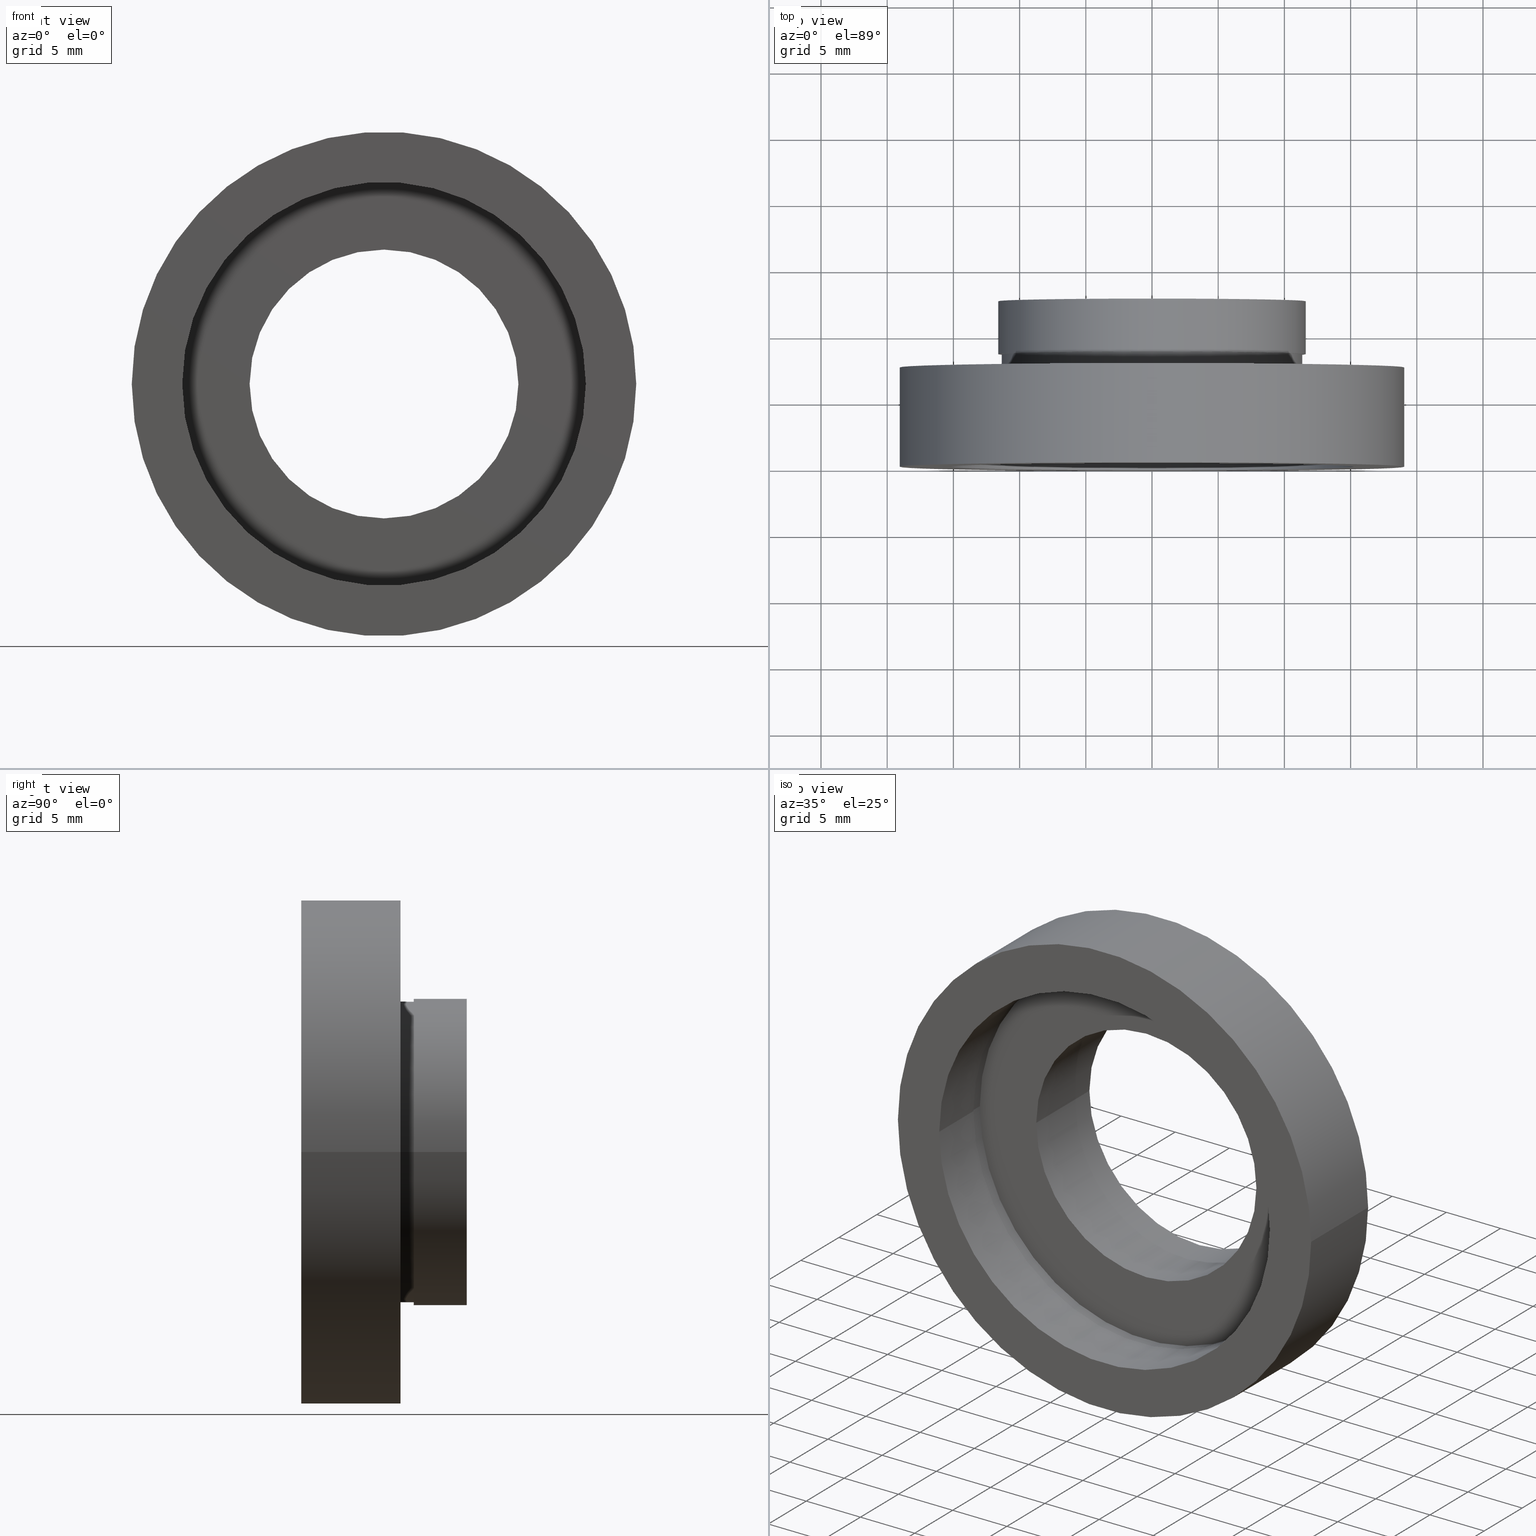
[diagram: canonical four-view strip — front | top / right | iso, engineering-drawing reading convention]
A machine part, canonical four-view strip (front | top / right | iso — engineering-drawing reading convention). The complete STEP part file that produces these views, byte-faithful:
ISO-10303-21;
HEADER;
FILE_DESCRIPTION (( 'STEP AP214' ),
    '1' );
FILE_NAME ('504111.STEP',
    '2019-10-08T06:22:47',
    ( '' ),
    ( '' ),
    'SwSTEP 2.0',
    'SolidWorks 2016',
    '' );
FILE_SCHEMA (( 'AUTOMOTIVE_DESIGN' ));
ENDSEC;

DATA;
#1 =( LENGTH_UNIT ( ) NAMED_UNIT ( * ) SI_UNIT ( .MILLI., .METRE. ) );
#2 =( GEOMETRIC_REPRESENTATION_CONTEXT ( 3 ) GLOBAL_UNCERTAINTY_ASSIGNED_CONTEXT ( ( #228 ) ) GLOBAL_UNIT_ASSIGNED_CONTEXT ( ( #546, #492, #10 ) ) REPRESENTATION_CONTEXT ( 'NONE', 'WORKASPACE' ) );
#3 = CARTESIAN_POINT ( 'NONE',  ( 10.15000000000000000, 12.49999999999999800, 1.243016501134563700E-015 ) ) ;
#4 = ORIENTED_EDGE ( 'NONE', *, *, #320, .T. ) ;
#5 = SURFACE_STYLE_USAGE ( .BOTH. , #469 ) ;
#6 = CIRCLE ( 'NONE', #435, 15.34999999999999800 ) ;
#7 = EDGE_LOOP ( 'NONE', ( #168, #304, #172, #42 ) ) ;
#8 = LINE ( 'NONE', #222, #330 ) ;
#9 = CARTESIAN_POINT ( 'NONE',  ( 1.026991039163387700E-015, 8.499999999999998200, 0.0000000000000000000 ) ) ;
#10 =( NAMED_UNIT ( * ) SI_UNIT ( $, .STERADIAN. ) SOLID_ANGLE_UNIT ( ) );
#11 = ORIENTED_EDGE ( 'NONE', *, *, #589, .F. ) ;
#12 = FACE_BOUND ( 'NONE', #287, .T. ) ;
#13 = CARTESIAN_POINT ( 'NONE',  ( 11.35000000000000100, 7.499999999999998200, 0.0000000000000000000 ) ) ;
#14 = VERTEX_POINT ( 'NONE', #74 ) ;
#15 = CARTESIAN_POINT ( 'NONE',  ( 1.516849758822328300E-015, 4.499999999999997300, 0.0000000000000000000 ) ) ;
#16 = ADVANCED_FACE ( 'NONE', ( #379 ), #299, .F. ) ;
#17 = CYLINDRICAL_SURFACE ( 'NONE', #34, 11.60999999999999900 ) ;
#18 = ORIENTED_EDGE ( 'NONE', *, *, #98, .F. ) ;
#19 = DIRECTION ( 'NONE',  ( -1.000000000000000000, -1.224646799147351200E-016, 0.0000000000000000000 ) ) ;
#20 = CYLINDRICAL_SURFACE ( 'NONE', #192, 19.05000000000000400 ) ;
#21 = CARTESIAN_POINT ( 'NONE',  ( -10.15000000000000000, 12.49999999999999500, 0.0000000000000000000 ) ) ;
#22 = AXIS2_PLACEMENT_3D ( 'NONE', #520, #36, #370 ) ;
#23 = DIRECTION ( 'NONE',  ( -1.000000000000000000, -1.224646799147351000E-016, 0.0000000000000000000 ) ) ;
#24 = EDGE_CURVE ( 'NONE', #32, #182, #565, .T. ) ;
#25 = DIRECTION ( 'NONE',  ( 1.000000000000000000, 1.224646799147351000E-016, 0.0000000000000000000 ) ) ;
#26 = EDGE_LOOP ( 'NONE', ( #602, #18 ) ) ;
#27 = ORIENTED_EDGE ( 'NONE', *, *, #191, .F. ) ;
#28 = ADVANCED_FACE ( 'NONE', ( #436 ), #220, .F. ) ;
#29 = PRODUCT ( '504111', '504111', '', ( #438 ) ) ;
#30 = CARTESIAN_POINT ( 'NONE',  ( 0.0000000000000000000, 16.88601823708207700, 0.0000000000000000000 ) ) ;
#31 = EDGE_CURVE ( 'NONE', #404, #14, #272, .T. ) ;
#32 = VERTEX_POINT ( 'NONE', #127 ) ;
#33 = CARTESIAN_POINT ( 'NONE',  ( 5.371323195044473300E-016, 12.49999999999999600, 0.0000000000000000000 ) ) ;
#34 = AXIS2_PLACEMENT_3D ( 'NONE', #193, #571, #339 ) ;
#35 = CIRCLE ( 'NONE', #352, 19.05000000000000400 ) ;
#36 = DIRECTION ( 'NONE',  ( -1.224646799147351000E-016, 1.000000000000000000, -0.0000000000000000000 ) ) ;
#37 = EDGE_CURVE ( 'NONE', #258, #238, #510, .T. ) ;
#38 = CARTESIAN_POINT ( 'NONE',  ( 11.35000000000000000, 16.88601823708207700, 1.389974117032245900E-015 ) ) ;
#39 = VECTOR ( 'NONE', #224, 1000.000000000000000 ) ;
#40 = EDGE_LOOP ( 'NONE', ( #214, #539, #375, #63 ) ) ;
#41 = AXIS2_PLACEMENT_3D ( 'NONE', #376, #302, #397 ) ;
#42 = ORIENTED_EDGE ( 'NONE', *, *, #581, .F. ) ;
#43 = CARTESIAN_POINT ( 'NONE',  ( 10.15000000000000000, 5.499999999999997300, 1.243016501134563700E-015 ) ) ;
#44 = PLANE ( 'NONE',  #491 ) ;
#45 = SURFACE_STYLE_USAGE ( .BOTH. , #432 ) ;
#46 = EDGE_LOOP ( 'NONE', ( #283, #473, #101, #344 ) ) ;
#47 = LINE ( 'NONE', #600, #146 ) ;
#48 = CARTESIAN_POINT ( 'NONE',  ( 0.0000000000000000000, 16.88601823708207700, 0.0000000000000000000 ) ) ;
#49 = EDGE_CURVE ( 'NONE', #238, #454, #169, .T. ) ;
#50 = DIRECTION ( 'NONE',  ( -1.000000000000000000, -1.494163200669084900E-016, 0.0000000000000000000 ) ) ;
#51 = AXIS2_PLACEMENT_3D ( 'NONE', #338, #334, #329 ) ;
#52 = VERTEX_POINT ( 'NONE', #178 ) ;
#53 = DIRECTION ( 'NONE',  ( -1.224646799147351000E-016, 1.000000000000000000, -0.0000000000000000000 ) ) ;
#54 = PRESENTATION_STYLE_ASSIGNMENT (( #414 ) ) ;
#55 = ORIENTED_EDGE ( 'NONE', *, *, #216, .T. ) ;
#56 = PLANE ( 'NONE',  #75 ) ;
#57 = CARTESIAN_POINT ( 'NONE',  ( 15.35000000000000000, 5.499999999999998200, 1.879832836691187100E-015 ) ) ;
#58 = PRODUCT_DEFINITION_SHAPE ( 'NONE', 'NONE',  #72 ) ;
#59 = EDGE_LOOP ( 'NONE', ( #151, #177, #301, #229 ) ) ;
#60 = FACE_OUTER_BOUND ( 'NONE', #46, .T. ) ;
#61 = DIRECTION ( 'NONE',  ( -1.224646799147351000E-016, 1.000000000000000000, 0.0000000000000000000 ) ) ;
#62 = EDGE_CURVE ( 'NONE', #427, #143, #544, .T. ) ;
#63 = ORIENTED_EDGE ( 'NONE', *, *, #320, .F. ) ;
#64 = AXIS2_PLACEMENT_3D ( 'NONE', #541, #576, #200 ) ;
#65 = DIRECTION ( 'NONE',  ( -1.000000000000000000, -1.224646799147350700E-016, 0.0000000000000000000 ) ) ;
#66 =( NAMED_UNIT ( * ) PLANE_ANGLE_UNIT ( ) SI_UNIT ( $, .RADIAN. ) );
#67 = ADVANCED_FACE ( 'NONE', ( #311 ), #266, .T. ) ;
#68 = ORIENTED_EDGE ( 'NONE', *, *, #356, .F. ) ;
#69 = ADVANCED_BREP_SHAPE_REPRESENTATION ( '504111', ( #250, #41 ), #201 ) ;
#70 = VERTEX_POINT ( 'NONE', #326 ) ;
#71 = DIRECTION ( 'NONE',  ( 1.224646799147351000E-016, -1.000000000000000000, 0.0000000000000000000 ) ) ;
#72 = PRODUCT_DEFINITION ( 'δ֪', '', #271, #163 ) ;
#73 = FACE_OUTER_BOUND ( 'NONE', #7, .T. ) ;
#74 = CARTESIAN_POINT ( 'NONE',  ( -11.60999999999999900, 12.49999999999999300, 0.0000000000000000000 ) ) ;
#75 = AXIS2_PLACEMENT_3D ( 'NONE', #13, #440, #395 ) ;
#76 = ORIENTED_EDGE ( 'NONE', *, *, #183, .T. ) ;
#77 = CIRCLE ( 'NONE', #590, 15.24000000000000000 ) ;
#78 =( NAMED_UNIT ( * ) SI_UNIT ( $, .STERADIAN. ) SOLID_ANGLE_UNIT ( ) );
#79 = COLOUR_RGB ( '',1.000000000000000000, 1.000000000000000000, 1.000000000000000000 ) ;
#80 = FILL_AREA_STYLE_COLOUR ( '', #133 ) ;
#81 = CARTESIAN_POINT ( 'NONE',  ( -11.35000000000000000, 16.88601823708207700, 0.0000000000000000000 ) ) ;
#82 = EDGE_CURVE ( 'NONE', #52, #444, #523, .T. ) ;
#83 = ORIENTED_EDGE ( 'NONE', *, *, #87, .T. ) ;
#84 = DIRECTION ( 'NONE',  ( -1.224646799147351000E-016, 1.000000000000000000, -0.0000000000000000000 ) ) ;
#85 = PRESENTATION_LAYER_ASSIGNMENT (  '', '', ( #449 ) ) ;
#86 = EDGE_LOOP ( 'NONE', ( #11, #125 ) ) ;
#87 = EDGE_CURVE ( 'NONE', #340, #70, #8, .T. ) ;
#88 = CARTESIAN_POINT ( 'NONE',  ( 11.60999999999999900, 8.500000000000000000, 0.0000000000000000000 ) ) ;
#89 = LINE ( 'NONE', #474, #456 ) ;
#90 = CARTESIAN_POINT ( 'NONE',  ( 19.05000000000000400, 7.499999999999999100, 2.332952152375708400E-015 ) ) ;
#91 = FILL_AREA_STYLE ('',( #616 ) ) ;
#92 = SURFACE_STYLE_FILL_AREA ( #363 ) ;
#93 = PRESENTATION_LAYER_ASSIGNMENT (  '', '', ( #276 ) ) ;
#94 = DIRECTION ( 'NONE',  ( -1.224646799147351000E-016, 1.000000000000000000, -0.0000000000000000000 ) ) ;
#95 = STYLED_ITEM ( 'NONE', ( #105 ), #250 ) ;
#96 = CARTESIAN_POINT ( 'NONE',  ( 1.026991039163387700E-015, 8.499999999999998200, 0.0000000000000000000 ) ) ;
#97 = VERTEX_POINT ( 'NONE', #604 ) ;
#98 = EDGE_CURVE ( 'NONE', #32, #441, #373, .T. ) ;
#99 = FACE_OUTER_BOUND ( 'NONE', #59, .T. ) ;
#100 = CARTESIAN_POINT ( 'NONE',  ( 0.0000000000000000000, 16.88601823708207700, 0.0000000000000000000 ) ) ;
#101 = ORIENTED_EDGE ( 'NONE', *, *, #126, .T. ) ;
#102 =( NAMED_UNIT ( * ) SI_UNIT ( $, .STERADIAN. ) SOLID_ANGLE_UNIT ( ) );
#103 = FACE_OUTER_BOUND ( 'NONE', #221, .T. ) ;
#104 = APPLICATION_CONTEXT ( 'automotive_design' ) ;
#105 = PRESENTATION_STYLE_ASSIGNMENT (( #45 ) ) ;
#106 = DIRECTION ( 'NONE',  ( -1.224646799147351000E-016, 1.000000000000000000, -0.0000000000000000000 ) ) ;
#107 = CIRCLE ( 'NONE', #108, 10.14999999999999900 ) ;
#108 = AXIS2_PLACEMENT_3D ( 'NONE', #153, #148, #393 ) ;
#109 = ORIENTED_EDGE ( 'NONE', *, *, #420, .T. ) ;
#110 = CARTESIAN_POINT ( 'NONE',  ( -19.04999999999999700, -5.802399104329318300E-015, 0.0000000000000000000 ) ) ;
#111 = ORIENTED_EDGE ( 'NONE', *, *, #82, .F. ) ;
#112 = FACE_BOUND ( 'NONE', #483, .T. ) ;
#113 = EDGE_CURVE ( 'NONE', #252, #598, #359, .T. ) ;
#114 = MECHANICAL_DESIGN_GEOMETRIC_PRESENTATION_REPRESENTATION (  '', ( #449 ), #482 ) ;
#115 = CARTESIAN_POINT ( 'NONE',  ( -11.34999999999999800, 8.499999999999996400, 0.0000000000000000000 ) ) ;
#116 = VECTOR ( 'NONE', #412, 1000.000000000000000 ) ;
#117 = EDGE_LOOP ( 'NONE', ( #68, #578, #314, #618 ) ) ;
#118 = LINE ( 'NONE', #381, #620 ) ;
#119 = ORIENTED_EDGE ( 'NONE', *, *, #37, .F. ) ;
#120 = EDGE_CURVE ( 'NONE', #595, #454, #615, .T. ) ;
#121 = AXIS2_PLACEMENT_3D ( 'NONE', #9, #345, #50 ) ;
#122 = CARTESIAN_POINT ( 'NONE',  ( 0.0000000000000000000, 16.88601823708207700, 0.0000000000000000000 ) ) ;
#123 = MECHANICAL_DESIGN_GEOMETRIC_PRESENTATION_REPRESENTATION (  '', ( #95 ), #161 ) ;
#124 = CIRCLE ( 'NONE', #130, 11.60999999999999900 ) ;
#125 = ORIENTED_EDGE ( 'NONE', *, *, #295, .F. ) ;
#126 = EDGE_CURVE ( 'NONE', #242, #427, #585, .T. ) ;
#127 = CARTESIAN_POINT ( 'NONE',  ( 19.05000000000000400, -1.136494799577910300E-015, 2.332952152375708400E-015 ) ) ;
#128 = VECTOR ( 'NONE', #175, 1000.000000000000000 ) ;
#129 = DIRECTION ( 'NONE',  ( -1.224646799147351000E-016, 1.000000000000000000, -0.0000000000000000000 ) ) ;
#130 = AXIS2_PLACEMENT_3D ( 'NONE', #239, #535, #476 ) ;
#131 = EDGE_LOOP ( 'NONE', ( #76, #83, #490, #316 ) ) ;
#132 = FILL_AREA_STYLE_COLOUR ( '', #383 ) ;
#133 = COLOUR_RGB ( '',1.000000000000000000, 1.000000000000000000, 1.000000000000000000 ) ;
#134 = DIRECTION ( 'NONE',  ( 1.000000000000000000, 1.224646799147351000E-016, 0.0000000000000000000 ) ) ;
#135 = EDGE_LOOP ( 'NONE', ( #119, #498, #549, #526 ) ) ;
#136 = DIRECTION ( 'NONE',  ( -1.224646799147351000E-016, 1.000000000000000000, -0.0000000000000000000 ) ) ;
#137 =( GEOMETRIC_REPRESENTATION_CONTEXT ( 3 ) GLOBAL_UNCERTAINTY_ASSIGNED_CONTEXT ( ( #499 ) ) GLOBAL_UNIT_ASSIGNED_CONTEXT ( ( #348, #66, #310 ) ) REPRESENTATION_CONTEXT ( 'NONE', 'WORKASPACE' ) );
#138 = FILL_AREA_STYLE_COLOUR ( '', #141 ) ;
#139 = FACE_OUTER_BOUND ( 'NONE', #117, .T. ) ;
#140 = CARTESIAN_POINT ( 'NONE',  ( -15.34999999999999600, 4.499999999999995600, 0.0000000000000000000 ) ) ;
#141 = COLOUR_RGB ( '',1.000000000000000000, 1.000000000000000000, 1.000000000000000000 ) ;
#142 = MECHANICAL_DESIGN_GEOMETRIC_PRESENTATION_REPRESENTATION (  '', ( #583 ), #416 ) ;
#143 = VERTEX_POINT ( 'NONE', #3 ) ;
#144 = DIRECTION ( 'NONE',  ( -1.000000000000000000, -1.365923996832131400E-016, 0.0000000000000000000 ) ) ;
#145 = DIRECTION ( 'NONE',  ( -1.224646799147351000E-016, 1.000000000000000000, -0.0000000000000000000 ) ) ;
#146 = VECTOR ( 'NONE', #270, 1000.000000000000000 ) ;
#147 = FILL_AREA_STYLE ('',( #472 ) ) ;
#148 = DIRECTION ( 'NONE',  ( -1.224646799147351000E-016, 1.000000000000000000, -0.0000000000000000000 ) ) ;
#149 = STYLED_ITEM ( 'NONE', ( #460 ), #16 ) ;
#150 =( LENGTH_UNIT ( ) NAMED_UNIT ( * ) SI_UNIT ( .MILLI., .METRE. ) );
#151 = ORIENTED_EDGE ( 'NONE', *, *, #589, .T. ) ;
#152 = ORIENTED_EDGE ( 'NONE', *, *, #452, .T. ) ;
#153 = CARTESIAN_POINT ( 'NONE',  ( 1.394385078907593200E-015, 5.499999999999996400, 0.0000000000000000000 ) ) ;
#154 = SURFACE_STYLE_FILL_AREA ( #389 ) ;
#155 = EDGE_LOOP ( 'NONE', ( #369, #391, #367, #199 ) ) ;
#156 = DIRECTION ( 'NONE',  ( -1.000000000000000000, 0.0000000000000000000, 0.0000000000000000000 ) ) ;
#157 = EDGE_CURVE ( 'NONE', #97, #556, #505, .T. ) ;
#158 = ADVANCED_FACE ( 'NONE', ( #249 ), #218, .T. ) ;
#159 = CIRCLE ( 'NONE', #121, 11.60999999999999800 ) ;
#160 = STYLED_ITEM ( 'NONE', ( #176 ), #360 ) ;
#161 =( GEOMETRIC_REPRESENTATION_CONTEXT ( 3 ) GLOBAL_UNCERTAINTY_ASSIGNED_CONTEXT ( ( #164 ) ) GLOBAL_UNIT_ASSIGNED_CONTEXT ( ( #568, #382, #234 ) ) REPRESENTATION_CONTEXT ( 'NONE', 'WORKASPACE' ) );
#162 = CARTESIAN_POINT ( 'NONE',  ( 1.516849758822328300E-015, 4.499999999999997300, 0.0000000000000000000 ) ) ;
#163 = PRODUCT_DEFINITION_CONTEXT ( 'detailed design', #104, 'design' ) ;
#164 = UNCERTAINTY_MEASURE_WITH_UNIT (LENGTH_MEASURE( 1.000000000000000100E-005 ), #568, 'distance_accuracy_value', 'NONE');
#165 = ADVANCED_FACE ( 'NONE', ( #103 ), #293, .T. ) ;
#166 = COLOUR_RGB ( '',1.000000000000000000, 1.000000000000000000, 1.000000000000000000 ) ;
#167 = SURFACE_STYLE_USAGE ( .BOTH. , #297 ) ;
#168 = ORIENTED_EDGE ( 'NONE', *, *, #87, .F. ) ;
#169 = CIRCLE ( 'NONE', #22, 11.35000000000000000 ) ;
#170 = CARTESIAN_POINT ( 'NONE',  ( 2.067940818438636500E-015, -3.469446951953614200E-015, 0.0000000000000000000 ) ) ;
#171 = FILL_AREA_STYLE_COLOUR ( '', #79 ) ;
#172 = ORIENTED_EDGE ( 'NONE', *, *, #31, .T. ) ;
#173 =( LENGTH_UNIT ( ) NAMED_UNIT ( * ) SI_UNIT ( .MILLI., .METRE. ) );
#174 = ORIENTED_EDGE ( 'NONE', *, *, #478, .T. ) ;
#175 = DIRECTION ( 'NONE',  ( -1.224646799147351000E-016, 1.000000000000000000, -0.0000000000000000000 ) ) ;
#176 = PRESENTATION_STYLE_ASSIGNMENT (( #167 ) ) ;
#177 = ORIENTED_EDGE ( 'NONE', *, *, #37, .T. ) ;
#178 = CARTESIAN_POINT ( 'NONE',  ( 15.35000000000000000, 4.499999999999999100, 1.879832836691187100E-015 ) ) ;
#179 = PRESENTATION_LAYER_ASSIGNMENT (  '', '', ( #149 ) ) ;
#180 = ORIENTED_EDGE ( 'NONE', *, *, #351, .T. ) ;
#181 = SURFACE_STYLE_FILL_AREA ( #226 ) ;
#182 = VERTEX_POINT ( 'NONE', #90 ) ;
#183 = EDGE_CURVE ( 'NONE', #404, #340, #231, .T. ) ;
#184 = DIRECTION ( 'NONE',  ( -1.000000000000000000, -1.130113013665672600E-016, 0.0000000000000000000 ) ) ;
#185 = DIRECTION ( 'NONE',  ( -1.224646799147351000E-016, 1.000000000000000000, -0.0000000000000000000 ) ) ;
#186 = SHAPE_DEFINITION_REPRESENTATION ( #58, #69 ) ;
#187 = CIRCLE ( 'NONE', #259, 11.35000000000000000 ) ;
#188 = PLANE ( 'NONE',  #280 ) ;
#189 = ORIENTED_EDGE ( 'NONE', *, *, #290, .F. ) ;
#190 = CARTESIAN_POINT ( 'NONE',  ( 15.24000000000000400, -1.603085230053050900E-015, 1.866361721900566200E-015 ) ) ;
#191 = EDGE_CURVE ( 'NONE', #444, #598, #599, .T. ) ;
#192 = AXIS2_PLACEMENT_3D ( 'NONE', #251, #586, #434 ) ;
#193 = CARTESIAN_POINT ( 'NONE',  ( 0.0000000000000000000, 16.88601823708207700, 0.0000000000000000000 ) ) ;
#194 =( NAMED_UNIT ( * ) PLANE_ANGLE_UNIT ( ) SI_UNIT ( $, .RADIAN. ) );
#195 = ORIENTED_EDGE ( 'NONE', *, *, #486, .T. ) ;
#196 = SURFACE_STYLE_USAGE ( .BOTH. , #489 ) ;
#197 = VECTOR ( 'NONE', #603, 1000.000000000000000 ) ;
#198 = SURFACE_STYLE_FILL_AREA ( #91 ) ;
#199 = ORIENTED_EDGE ( 'NONE', *, *, #113, .F. ) ;
#200 = DIRECTION ( 'NONE',  ( -1.000000000000000000, -1.709087168450056200E-016, 0.0000000000000000000 ) ) ;
#201 =( GEOMETRIC_REPRESENTATION_CONTEXT ( 3 ) GLOBAL_UNCERTAINTY_ASSIGNED_CONTEXT ( ( #296 ) ) GLOBAL_UNIT_ASSIGNED_CONTEXT ( ( #570, #384, #232 ) ) REPRESENTATION_CONTEXT ( 'NONE', 'WORKASPACE' ) );
#202 = SURFACE_STYLE_FILL_AREA ( #286 ) ;
#203 = FILL_AREA_STYLE ('',( #443 ) ) ;
#204 = APPLICATION_PROTOCOL_DEFINITION ( 'draft international standard', 'automotive_design', 1998, #104 ) ;
#205 = DIRECTION ( 'NONE',  ( -1.224646799147351000E-016, 1.000000000000000000, -0.0000000000000000000 ) ) ;
#206 = ORIENTED_EDGE ( 'NONE', *, *, #323, .F. ) ;
#207 = AXIS2_PLACEMENT_3D ( 'NONE', #162, #309, #211 ) ;
#208 = CIRCLE ( 'NONE', #207, 15.23999999999999700 ) ;
#209 = ORIENTED_EDGE ( 'NONE', *, *, #519, .F. ) ;
#210 = CARTESIAN_POINT ( 'NONE',  ( 0.0000000000000000000, 16.88601823708207700, 0.0000000000000000000 ) ) ;
#211 = DIRECTION ( 'NONE',  ( -1.000000000000000000, -1.138269997360109900E-016, 0.0000000000000000000 ) ) ;
#212 = DIRECTION ( 'NONE',  ( -1.000000000000000000, -2.260226027331345300E-016, 0.0000000000000000000 ) ) ;
#213 = STYLED_ITEM ( 'NONE', ( #54 ), #67 ) ;
#214 = ORIENTED_EDGE ( 'NONE', *, *, #24, .F. ) ;
#215 = DIRECTION ( 'NONE',  ( -1.224646799147351000E-016, 1.000000000000000000, -0.0000000000000000000 ) ) ;
#216 = EDGE_CURVE ( 'NONE', #467, #97, #89, .T. ) ;
#217 = DIRECTION ( 'NONE',  ( -1.224646799147351000E-016, 1.000000000000000000, -0.0000000000000000000 ) ) ;
#218 = CYLINDRICAL_SURFACE ( 'NONE', #353, 11.35000000000000000 ) ;
#219 = ADVANCED_FACE ( 'NONE', ( #73 ), #17, .T. ) ;
#220 = CYLINDRICAL_SURFACE ( 'NONE', #557, 15.34999999999999800 ) ;
#221 = EDGE_LOOP ( 'NONE', ( #307, #545, #298, #409 ) ) ;
#222 = CARTESIAN_POINT ( 'NONE',  ( 11.60999999999999900, 16.88601823708207700, 1.421814933810076900E-015 ) ) ;
#223 = AXIS2_PLACEMENT_3D ( 'NONE', #284, #136, #300 ) ;
#224 = DIRECTION ( 'NONE',  ( -1.224646799147351000E-016, 1.000000000000000000, -0.0000000000000000000 ) ) ;
#225 = AXIS2_PLACEMENT_3D ( 'NONE', #380, #573, #184 ) ;
#226 = FILL_AREA_STYLE ('',( #80 ) ) ;
#227 = FACE_BOUND ( 'NONE', #451, .T. ) ;
#228 = UNCERTAINTY_MEASURE_WITH_UNIT (LENGTH_MEASURE( 1.000000000000000100E-005 ), #546, 'distance_accuracy_value', 'NONE');
#229 = ORIENTED_EDGE ( 'NONE', *, *, #120, .F. ) ;
#230 =( LENGTH_UNIT ( ) NAMED_UNIT ( * ) SI_UNIT ( .MILLI., .METRE. ) );
#231 = CIRCLE ( 'NONE', #418, 11.60999999999999800 ) ;
#232 =( NAMED_UNIT ( * ) SI_UNIT ( $, .STERADIAN. ) SOLID_ANGLE_UNIT ( ) );
#233 = STYLED_ITEM ( 'NONE', ( #364 ), #69 ) ;
#234 =( NAMED_UNIT ( * ) SI_UNIT ( $, .STERADIAN. ) SOLID_ANGLE_UNIT ( ) );
#235 = DIRECTION ( 'NONE',  ( -1.000000000000000000, -1.528390727732869900E-016, 0.0000000000000000000 ) ) ;
#236 = DIRECTION ( 'NONE',  ( -1.224646799147351000E-016, 1.000000000000000000, -0.0000000000000000000 ) ) ;
#237 = CIRCLE ( 'NONE', #536, 10.14999999999999900 ) ;
#238 = VERTEX_POINT ( 'NONE', #530 ) ;
#239 = CARTESIAN_POINT ( 'NONE',  ( 5.371323195044477300E-016, 12.49999999999999500, 0.0000000000000000000 ) ) ;
#240 = AXIS2_PLACEMENT_3D ( 'NONE', #15, #597, #350 ) ;
#241 = CARTESIAN_POINT ( 'NONE',  ( 11.35000000000000100, 7.500000000000000000, 1.389974117032245900E-015 ) ) ;
#242 = VERTEX_POINT ( 'NONE', #569 ) ;
#243 = FACE_BOUND ( 'NONE', #322, .T. ) ;
#244 =( NAMED_UNIT ( * ) SI_UNIT ( $, .STERADIAN. ) SOLID_ANGLE_UNIT ( ) );
#245 = DIRECTION ( 'NONE',  ( -1.000000000000000000, 0.0000000000000000000, 0.0000000000000000000 ) ) ;
#246 = EDGE_LOOP ( 'NONE', ( #400, #206 ) ) ;
#247 =( NAMED_UNIT ( * ) PLANE_ANGLE_UNIT ( ) SI_UNIT ( $, .RADIAN. ) );
#248 = DIRECTION ( 'NONE',  ( -1.224646799147351000E-016, 1.000000000000000000, -0.0000000000000000000 ) ) ;
#249 = FACE_OUTER_BOUND ( 'NONE', #135, .T. ) ;
#250 = MANIFOLD_SOLID_BREP ( '��ת1', #349 ) ;
#251 = CARTESIAN_POINT ( 'NONE',  ( 0.0000000000000000000, 16.88601823708207700, 0.0000000000000000000 ) ) ;
#252 = VERTEX_POINT ( 'NONE', #140 ) ;
#253 =( LENGTH_UNIT ( ) NAMED_UNIT ( * ) SI_UNIT ( .MILLI., .METRE. ) );
#254 = VERTEX_POINT ( 'NONE', #190 ) ;
#255 = DIRECTION ( 'NONE',  ( -1.000000000000000000, -8.545435842250282200E-017, 0.0000000000000000000 ) ) ;
#256 = CARTESIAN_POINT ( 'NONE',  ( 10.15000000000000000, 5.499999999999999100, 0.0000000000000000000 ) ) ;
#257 = EDGE_CURVE ( 'NONE', #14, #70, #342, .T. ) ;
#258 = VERTEX_POINT ( 'NONE', #241 ) ;
#259 = AXIS2_PLACEMENT_3D ( 'NONE', #292, #485, #543 ) ;
#260 = FACE_OUTER_BOUND ( 'NONE', #529, .T. ) ;
#261 = CARTESIAN_POINT ( 'NONE',  ( 0.0000000000000000000, 16.88601823708207700, 0.0000000000000000000 ) ) ;
#262 = ORIENTED_EDGE ( 'NONE', *, *, #519, .T. ) ;
#263 = CARTESIAN_POINT ( 'NONE',  ( -11.60999999999999600, 8.499999999999996400, 0.0000000000000000000 ) ) ;
#264 = ADVANCED_FACE ( 'NONE', ( #579 ), #513, .F. ) ;
#265 = SURFACE_SIDE_STYLE ('',( #92 ) ) ;
#266 = CYLINDRICAL_SURFACE ( 'NONE', #577, 11.60999999999999900 ) ;
#267 = DIRECTION ( 'NONE',  ( -1.000000000000000000, -1.224646799147350700E-016, 0.0000000000000000000 ) ) ;
#268 = ADVANCED_FACE ( 'NONE', ( #139 ), #471, .F. ) ;
#269 = ORIENTED_EDGE ( 'NONE', *, *, #157, .T. ) ;
#270 = DIRECTION ( 'NONE',  ( -1.224646799147351000E-016, 1.000000000000000000, -0.0000000000000000000 ) ) ;
#271 = PRODUCT_DEFINITION_FORMATION_WITH_SPECIFIED_SOURCE ( '�κ�', '', #29, .NOT_KNOWN. ) ;
#272 = LINE ( 'NONE', #559, #197 ) ;
#273 = FACE_OUTER_BOUND ( 'NONE', #421, .T. ) ;
#274 = ORIENTED_EDGE ( 'NONE', *, *, #356, .T. ) ;
#275 = ADVANCED_FACE ( 'NONE', ( #306, #289 ), #56, .F. ) ;
#276 = STYLED_ITEM ( 'NONE', ( #533 ), #268 ) ;
#277 = DIRECTION ( 'NONE',  ( -1.224646799147351000E-016, 1.000000000000000000, -0.0000000000000000000 ) ) ;
#278 = DIRECTION ( 'NONE',  ( -1.000000000000000000, 0.0000000000000000000, 0.0000000000000000000 ) ) ;
#279 = FACE_OUTER_BOUND ( 'NONE', #552, .T. ) ;
#280 = AXIS2_PLACEMENT_3D ( 'NONE', #624, #336, #134 ) ;
#281 = ORIENTED_EDGE ( 'NONE', *, *, #415, .F. ) ;
#282 = CARTESIAN_POINT ( 'NONE',  ( 15.23999999999999800, 4.499999999999999100, 1.866361721900565400E-015 ) ) ;
#283 = ORIENTED_EDGE ( 'NONE', *, *, #614, .F. ) ;
#284 = CARTESIAN_POINT ( 'NONE',  ( 0.0000000000000000000, 16.88601823708207700, 0.0000000000000000000 ) ) ;
#285 = CARTESIAN_POINT ( 'NONE',  ( -11.34999999999999800, 7.499999999999996400, 0.0000000000000000000 ) ) ;
#286 = FILL_AREA_STYLE ('',( #378 ) ) ;
#287 = EDGE_LOOP ( 'NONE', ( #479, #274 ) ) ;
#288 = CARTESIAN_POINT ( 'NONE',  ( 1.516849758822328300E-015, 4.499999999999997300, 0.0000000000000000000 ) ) ;
#289 = FACE_OUTER_BOUND ( 'NONE', #327, .T. ) ;
#290 = EDGE_CURVE ( 'NONE', #143, #427, #355, .T. ) ;
#291 = PRESENTATION_LAYER_ASSIGNMENT (  '', '', ( #160 ) ) ;
#292 = CARTESIAN_POINT ( 'NONE',  ( 1.149455719078122700E-015, 7.499999999999998200, 0.0000000000000000000 ) ) ;
#293 = CYLINDRICAL_SURFACE ( 'NONE', #51, 19.05000000000000400 ) ;
#294 = DIRECTION ( 'NONE',  ( -1.224646799147351000E-016, 1.000000000000000000, -0.0000000000000000000 ) ) ;
#295 = EDGE_CURVE ( 'NONE', #258, #595, #187, .T. ) ;
#296 = UNCERTAINTY_MEASURE_WITH_UNIT (LENGTH_MEASURE( 1.000000000000000100E-005 ), #570, 'distance_accuracy_value', 'NONE');
#297 = SURFACE_SIDE_STYLE ('',( #601 ) ) ;
#298 = ORIENTED_EDGE ( 'NONE', *, *, #551, .F. ) ;
#299 = CYLINDRICAL_SURFACE ( 'NONE', #534, 15.23999999999999800 ) ;
#300 = DIRECTION ( 'NONE',  ( -1.000000000000000000, -2.276539994720219300E-016, 0.0000000000000000000 ) ) ;
#301 = ORIENTED_EDGE ( 'NONE', *, *, #351, .F. ) ;
#302 = DIRECTION ( 'NONE',  ( 0.0000000000000000000, 0.0000000000000000000, 1.000000000000000000 ) ) ;
#303 = AXIS2_PLACEMENT_3D ( 'NONE', #261, #494, #593 ) ;
#304 = ORIENTED_EDGE ( 'NONE', *, *, #323, .T. ) ;
#305 = CARTESIAN_POINT ( 'NONE',  ( 1.516849758822328300E-015, 4.499999999999997300, 0.0000000000000000000 ) ) ;
#306 = FACE_BOUND ( 'NONE', #86, .T. ) ;
#307 = ORIENTED_EDGE ( 'NONE', *, *, #448, .T. ) ;
#308 = DIRECTION ( 'NONE',  ( -1.224646799147351000E-016, 1.000000000000000000, -0.0000000000000000000 ) ) ;
#309 = DIRECTION ( 'NONE',  ( -1.224646799147351000E-016, 1.000000000000000000, -0.0000000000000000000 ) ) ;
#310 =( NAMED_UNIT ( * ) SI_UNIT ( $, .STERADIAN. ) SOLID_ANGLE_UNIT ( ) );
#311 = FACE_OUTER_BOUND ( 'NONE', #131, .T. ) ;
#312 = CARTESIAN_POINT ( 'NONE',  ( 15.23999999999999800, 4.499999999999999100, 0.0000000000000000000 ) ) ;
#313 = ADVANCED_FACE ( 'NONE', ( #399 ), #20, .T. ) ;
#314 = ORIENTED_EDGE ( 'NONE', *, *, #290, .T. ) ;
#315 =( NAMED_UNIT ( * ) PLANE_ANGLE_UNIT ( ) SI_UNIT ( $, .RADIAN. ) );
#316 = ORIENTED_EDGE ( 'NONE', *, *, #31, .F. ) ;
#317 = CIRCLE ( 'NONE', #388, 11.35000000000000000 ) ;
#318 = EDGE_LOOP ( 'NONE', ( #622, #281 ) ) ;
#319 = CARTESIAN_POINT ( 'NONE',  ( 19.05000000000000400, 16.88601823708208000, 2.332952152375708400E-015 ) ) ;
#320 = EDGE_CURVE ( 'NONE', #182, #607, #35, .T. ) ;
#321 = AXIS2_PLACEMENT_3D ( 'NONE', #100, #53, #245 ) ;
#322 = EDGE_LOOP ( 'NONE', ( #572, #189 ) ) ;
#323 = EDGE_CURVE ( 'NONE', #340, #404, #159, .T. ) ;
#324 = COLOUR_RGB ( '',1.000000000000000000, 1.000000000000000000, 1.000000000000000000 ) ;
#325 = COLOUR_RGB ( '',1.000000000000000000, 1.000000000000000000, 1.000000000000000000 ) ;
#326 = CARTESIAN_POINT ( 'NONE',  ( 11.60999999999999900, 12.49999999999999600, 1.421814933810076900E-015 ) ) ;
#327 = EDGE_LOOP ( 'NONE', ( #501, #4 ) ) ;
#328 = DIRECTION ( 'NONE',  ( -1.224646799147351000E-016, 1.000000000000000000, -0.0000000000000000000 ) ) ;
#329 = DIRECTION ( 'NONE',  ( -1.000000000000000000, -1.821231995776175000E-016, 0.0000000000000000000 ) ) ;
#330 = VECTOR ( 'NONE', #372, 1000.000000000000000 ) ;
#331 = CARTESIAN_POINT ( 'NONE',  ( -15.34999999999999600, 5.499999999999994700, 0.0000000000000000000 ) ) ;
#332 = AXIS2_PLACEMENT_3D ( 'NONE', #527, #374, #144 ) ;
#333 = CARTESIAN_POINT ( 'NONE',  ( 1.149455719078122700E-015, 7.499999999999998200, 0.0000000000000000000 ) ) ;
#334 = DIRECTION ( 'NONE',  ( -1.224646799147351000E-016, 1.000000000000000000, -0.0000000000000000000 ) ) ;
#335 = FACE_OUTER_BOUND ( 'NONE', #554, .T. ) ;
#336 = DIRECTION ( 'NONE',  ( 1.224646799147351000E-016, -1.000000000000000000, 0.0000000000000000000 ) ) ;
#337 = AXIS2_PLACEMENT_3D ( 'NONE', #354, #308, #19 ) ;
#338 = CARTESIAN_POINT ( 'NONE',  ( 0.0000000000000000000, 16.88601823708207700, 0.0000000000000000000 ) ) ;
#339 = DIRECTION ( 'NONE',  ( -1.000000000000000000, 0.0000000000000000000, 0.0000000000000000000 ) ) ;
#340 = VERTEX_POINT ( 'NONE', #481 ) ;
#341 = DIRECTION ( 'NONE',  ( -1.000000000000000000, -1.528390727732869900E-016, 0.0000000000000000000 ) ) ;
#342 = CIRCLE ( 'NONE', #487, 11.60999999999999900 ) ;
#343 = MECHANICAL_DESIGN_GEOMETRIC_PRESENTATION_REPRESENTATION (  '', ( #233 ), #371 ) ;
#344 = ORIENTED_EDGE ( 'NONE', *, *, #62, .T. ) ;
#345 = DIRECTION ( 'NONE',  ( -1.224646799147351000E-016, 1.000000000000000000, -0.0000000000000000000 ) ) ;
#346 = VECTOR ( 'NONE', #466, 1000.000000000000000 ) ;
#347 = COLOUR_RGB ( '',1.000000000000000000, 1.000000000000000000, 1.000000000000000000 ) ;
#348 =( LENGTH_UNIT ( ) NAMED_UNIT ( * ) SI_UNIT ( .MILLI., .METRE. ) );
#349 = CLOSED_SHELL ( 'NONE', ( #165, #403, #67, #268, #28, #264, #401, #16, #503, #411, #455, #360, #594, #219, #587, #158, #275, #313 ) ) ;
#350 = DIRECTION ( 'NONE',  ( -1.000000000000000000, -1.130113013665672600E-016, 0.0000000000000000000 ) ) ;
#351 = EDGE_CURVE ( 'NONE', #454, #238, #317, .T. ) ;
#352 = AXIS2_PLACEMENT_3D ( 'NONE', #398, #248, #584 ) ;
#353 = AXIS2_PLACEMENT_3D ( 'NONE', #48, #145, #619 ) ;
#354 = CARTESIAN_POINT ( 'NONE',  ( 2.067940818438636500E-015, -3.469446951953614200E-015, 0.0000000000000000000 ) ) ;
#355 = CIRCLE ( 'NONE', #64, 10.15000000000000000 ) ;
#356 = EDGE_CURVE ( 'NONE', #612, #242, #107, .T. ) ;
#357 = DIRECTION ( 'NONE',  ( -1.224646799147351000E-016, 1.000000000000000000, -0.0000000000000000000 ) ) ;
#358 = PLANE ( 'NONE',  #408 ) ;
#359 = LINE ( 'NONE', #525, #116 ) ;
#360 = ADVANCED_FACE ( 'NONE', ( #60 ), #540, .F. ) ;
#361 = PRODUCT_RELATED_PRODUCT_CATEGORY ( 'part', '', ( #29 ) ) ;
#362 =( NAMED_UNIT ( * ) SI_UNIT ( $, .STERADIAN. ) SOLID_ANGLE_UNIT ( ) );
#363 = FILL_AREA_STYLE ('',( #171 ) ) ;
#364 = PRESENTATION_STYLE_ASSIGNMENT (( #433 ) ) ;
#365 = AXIS2_PLACEMENT_3D ( 'NONE', #497, #61, #23 ) ;
#366 = SURFACE_SIDE_STYLE ('',( #181 ) ) ;
#367 = ORIENTED_EDGE ( 'NONE', *, *, #191, .T. ) ;
#368 = FACE_OUTER_BOUND ( 'NONE', #246, .T. ) ;
#369 = ORIENTED_EDGE ( 'NONE', *, *, #394, .F. ) ;
#370 = DIRECTION ( 'NONE',  ( -1.000000000000000000, -1.528390727732869900E-016, 0.0000000000000000000 ) ) ;
#371 =( GEOMETRIC_REPRESENTATION_CONTEXT ( 3 ) GLOBAL_UNCERTAINTY_ASSIGNED_CONTEXT ( ( #582 ) ) GLOBAL_UNIT_ASSIGNED_CONTEXT ( ( #253, #247, #244 ) ) REPRESENTATION_CONTEXT ( 'NONE', 'WORKASPACE' ) );
#372 = DIRECTION ( 'NONE',  ( -1.224646799147351000E-016, 1.000000000000000000, -0.0000000000000000000 ) ) ;
#373 = CIRCLE ( 'NONE', #390, 19.05000000000000100 ) ;
#374 = DIRECTION ( 'NONE',  ( -1.224646799147351000E-016, 1.000000000000000000, -0.0000000000000000000 ) ) ;
#375 = ORIENTED_EDGE ( 'NONE', *, *, #459, .T. ) ;
#376 = CARTESIAN_POINT ( 'NONE',  ( 0.0000000000000000000, 0.0000000000000000000, 0.0000000000000000000 ) ) ;
#377 = VECTOR ( 'NONE', #517, 1000.000000000000000 ) ;
#378 = FILL_AREA_STYLE_COLOUR ( '', #166 ) ;
#379 = FACE_OUTER_BOUND ( 'NONE', #560, .T. ) ;
#380 = CARTESIAN_POINT ( 'NONE',  ( 1.394385078907593200E-015, 5.499999999999996400, 0.0000000000000000000 ) ) ;
#381 = CARTESIAN_POINT ( 'NONE',  ( 10.14999999999999900, 16.88601823708207700, 1.243016501134563500E-015 ) ) ;
#382 =( NAMED_UNIT ( * ) PLANE_ANGLE_UNIT ( ) SI_UNIT ( $, .RADIAN. ) );
#383 = COLOUR_RGB ( '',1.000000000000000000, 1.000000000000000000, 1.000000000000000000 ) ;
#384 =( NAMED_UNIT ( * ) PLANE_ANGLE_UNIT ( ) SI_UNIT ( $, .RADIAN. ) );
#385 = DIRECTION ( 'NONE',  ( -1.224646799147351000E-016, 1.000000000000000000, -0.0000000000000000000 ) ) ;
#386 = EDGE_CURVE ( 'NONE', #242, #612, #237, .T. ) ;
#387 = CIRCLE ( 'NONE', #566, 15.24000000000000000 ) ;
#388 = AXIS2_PLACEMENT_3D ( 'NONE', #96, #294, #341 ) ;
#389 = FILL_AREA_STYLE ('',( #132 ) ) ;
#390 = AXIS2_PLACEMENT_3D ( 'NONE', #555, #277, #606 ) ;
#391 = ORIENTED_EDGE ( 'NONE', *, *, #82, .T. ) ;
#392 = APPLICATION_PROTOCOL_DEFINITION ( 'draft international standard', 'automotive_design', 1998, #480 ) ;
#393 = DIRECTION ( 'NONE',  ( -1.000000000000000000, -8.545435842250282200E-017, 0.0000000000000000000 ) ) ;
#394 = EDGE_CURVE ( 'NONE', #52, #252, #413, .T. ) ;
#395 = DIRECTION ( 'NONE',  ( 1.000000000000000000, 1.224646799147351000E-016, 0.0000000000000000000 ) ) ;
#396 = ORIENTED_EDGE ( 'NONE', *, *, #394, .T. ) ;
#397 = DIRECTION ( 'NONE',  ( 1.000000000000000000, 0.0000000000000000000, 0.0000000000000000000 ) ) ;
#398 = CARTESIAN_POINT ( 'NONE',  ( 1.149455719078123100E-015, 7.499999999999996400, 0.0000000000000000000 ) ) ;
#399 = FACE_OUTER_BOUND ( 'NONE', #40, .T. ) ;
#400 = ORIENTED_EDGE ( 'NONE', *, *, #183, .F. ) ;
#401 = ADVANCED_FACE ( 'NONE', ( #518, #227 ), #447, .F. ) ;
#402 = AXIS2_PLACEMENT_3D ( 'NONE', #210, #548, #212 ) ;
#403 = ADVANCED_FACE ( 'NONE', ( #99 ), #458, .T. ) ;
#404 = VERTEX_POINT ( 'NONE', #263 ) ;
#405 = CIRCLE ( 'NONE', #428, 15.34999999999999800 ) ;
#406 = UNCERTAINTY_MEASURE_WITH_UNIT (LENGTH_MEASURE( 1.000000000000000100E-005 ), #1, 'distance_accuracy_value', 'NONE');
#407 = DIRECTION ( 'NONE',  ( -1.224646799147351000E-016, 1.000000000000000000, -0.0000000000000000000 ) ) ;
#408 = AXIS2_PLACEMENT_3D ( 'NONE', #312, #71, #25 ) ;
#409 = ORIENTED_EDGE ( 'NONE', *, *, #459, .F. ) ;
#410 = ORIENTED_EDGE ( 'NONE', *, *, #113, .T. ) ;
#411 = ADVANCED_FACE ( 'NONE', ( #335 ), #430, .F. ) ;
#412 = DIRECTION ( 'NONE',  ( -1.224646799147351000E-016, 1.000000000000000000, -0.0000000000000000000 ) ) ;
#413 = CIRCLE ( 'NONE', #240, 15.34999999999999800 ) ;
#414 = SURFACE_STYLE_USAGE ( .BOTH. , #366 ) ;
#415 = EDGE_CURVE ( 'NONE', #556, #97, #208, .T. ) ;
#416 =( GEOMETRIC_REPRESENTATION_CONTEXT ( 3 ) GLOBAL_UNCERTAINTY_ASSIGNED_CONTEXT ( ( #563 ) ) GLOBAL_UNIT_ASSIGNED_CONTEXT ( ( #150, #194, #102 ) ) REPRESENTATION_CONTEXT ( 'NONE', 'WORKASPACE' ) );
#417 = CARTESIAN_POINT ( 'NONE',  ( -10.14999999999999900, 16.88601823708207700, 0.0000000000000000000 ) ) ;
#418 = AXIS2_PLACEMENT_3D ( 'NONE', #532, #385, #426 ) ;
#419 = DIRECTION ( 'NONE',  ( -1.000000000000000000, -2.276539994720219300E-016, 0.0000000000000000000 ) ) ;
#420 = EDGE_CURVE ( 'NONE', #252, #52, #405, .T. ) ;
#421 = EDGE_LOOP ( 'NONE', ( #446, #509 ) ) ;
#422 = DIRECTION ( 'NONE',  ( -1.000000000000000000, -1.709087168450056200E-016, 0.0000000000000000000 ) ) ;
#423 = EDGE_LOOP ( 'NONE', ( #493, #195, #567, #512 ) ) ;
#424 = CARTESIAN_POINT ( 'NONE',  ( 5.371323195044477300E-016, 12.49999999999999500, 0.0000000000000000000 ) ) ;
#425 = DIRECTION ( 'NONE',  ( -1.000000000000000000, -1.494163200669084600E-016, 0.0000000000000000000 ) ) ;
#426 = DIRECTION ( 'NONE',  ( -1.000000000000000000, -1.494163200669084900E-016, 0.0000000000000000000 ) ) ;
#427 = VERTEX_POINT ( 'NONE', #21 ) ;
#428 = AXIS2_PLACEMENT_3D ( 'NONE', #305, #357, #592 ) ;
#429 = SURFACE_SIDE_STYLE ('',( #202 ) ) ;
#430 = CYLINDRICAL_SURFACE ( 'NONE', #402, 15.34999999999999800 ) ;
#431 = ORIENTED_EDGE ( 'NONE', *, *, #478, .F. ) ;
#432 = SURFACE_SIDE_STYLE ('',( #515 ) ) ;
#433 = SURFACE_STYLE_USAGE ( .BOTH. , #484 ) ;
#434 = DIRECTION ( 'NONE',  ( -1.000000000000000000, -1.821231995776175000E-016, 0.0000000000000000000 ) ) ;
#435 = AXIS2_PLACEMENT_3D ( 'NONE', #507, #215, #580 ) ;
#436 = FACE_OUTER_BOUND ( 'NONE', #155, .T. ) ;
#437 = SURFACE_STYLE_FILL_AREA ( #147 ) ;
#438 = PRODUCT_CONTEXT ( 'NONE', #480, 'mechanical' ) ;
#439 = PRESENTATION_STYLE_ASSIGNMENT (( #5 ) ) ;
#440 = DIRECTION ( 'NONE',  ( 1.224646799147351000E-016, -1.000000000000000000, 0.0000000000000000000 ) ) ;
#441 = VERTEX_POINT ( 'NONE', #110 ) ;
#442 = CARTESIAN_POINT ( 'NONE',  ( 0.0000000000000000000, 16.88601823708207700, 0.0000000000000000000 ) ) ;
#443 = FILL_AREA_STYLE_COLOUR ( '', #347 ) ;
#444 = VERTEX_POINT ( 'NONE', #57 ) ;
#445 = DIRECTION ( 'NONE',  ( -1.000000000000000000, -1.224646799147351000E-016, 0.0000000000000000000 ) ) ;
#446 = ORIENTED_EDGE ( 'NONE', *, *, #257, .T. ) ;
#447 = PLANE ( 'NONE',  #365 ) ;
#448 = EDGE_CURVE ( 'NONE', #441, #32, #574, .T. ) ;
#449 = STYLED_ITEM ( 'NONE', ( #468 ), #219 ) ;
#450 = CARTESIAN_POINT ( 'NONE',  ( 2.067940818438636500E-015, -3.469446951953614200E-015, 0.0000000000000000000 ) ) ;
#451 = EDGE_LOOP ( 'NONE', ( #174, #152 ) ) ;
#452 = EDGE_CURVE ( 'NONE', #254, #467, #77, .T. ) ;
#453 = DIRECTION ( 'NONE',  ( -1.224646799147351000E-016, 1.000000000000000000, 0.0000000000000000000 ) ) ;
#454 = VERTEX_POINT ( 'NONE', #115 ) ;
#455 = ADVANCED_FACE ( 'NONE', ( #260, #12 ), #502, .F. ) ;
#456 = VECTOR ( 'NONE', #185, 1000.000000000000000 ) ;
#457 = AXIS2_PLACEMENT_3D ( 'NONE', #256, #453, #445 ) ;
#458 = CYLINDRICAL_SURFACE ( 'NONE', #303, 11.35000000000000000 ) ;
#459 = EDGE_CURVE ( 'NONE', #441, #607, #47, .T. ) ;
#460 = PRESENTATION_STYLE_ASSIGNMENT (( #508 ) ) ;
#461 = AXIS2_PLACEMENT_3D ( 'NONE', #442, #106, #156 ) ;
#462 = DIRECTION ( 'NONE',  ( -1.224646799147351000E-016, 1.000000000000000000, -0.0000000000000000000 ) ) ;
#463 = DIRECTION ( 'NONE',  ( -1.224646799147351000E-016, 1.000000000000000000, -0.0000000000000000000 ) ) ;
#464 = ORIENTED_EDGE ( 'NONE', *, *, #420, .F. ) ;
#465 = CIRCLE ( 'NONE', #542, 11.35000000000000000 ) ;
#466 = DIRECTION ( 'NONE',  ( -1.224646799147351000E-016, 1.000000000000000000, -0.0000000000000000000 ) ) ;
#467 = VERTEX_POINT ( 'NONE', #550 ) ;
#468 = PRESENTATION_STYLE_ASSIGNMENT (( #528 ) ) ;
#469 = SURFACE_SIDE_STYLE ('',( #198 ) ) ;
#470 = DIRECTION ( 'NONE',  ( -1.224646799147351000E-016, 1.000000000000000000, -0.0000000000000000000 ) ) ;
#471 = CYLINDRICAL_SURFACE ( 'NONE', #321, 10.14999999999999900 ) ;
#472 = FILL_AREA_STYLE_COLOUR ( '', #324 ) ;
#473 = ORIENTED_EDGE ( 'NONE', *, *, #386, .F. ) ;
#474 = CARTESIAN_POINT ( 'NONE',  ( -15.23999999999999800, 16.88601823708207300, 0.0000000000000000000 ) ) ;
#475 = FILL_AREA_STYLE ('',( #138 ) ) ;
#476 = DIRECTION ( 'NONE',  ( -1.000000000000000000, -1.494163200669084600E-016, 0.0000000000000000000 ) ) ;
#477 =( NAMED_UNIT ( * ) PLANE_ANGLE_UNIT ( ) SI_UNIT ( $, .RADIAN. ) );
#478 = EDGE_CURVE ( 'NONE', #467, #254, #387, .T. ) ;
#479 = ORIENTED_EDGE ( 'NONE', *, *, #386, .T. ) ;
#480 = APPLICATION_CONTEXT ( 'automotive_design' ) ;
#481 = CARTESIAN_POINT ( 'NONE',  ( 11.60999999999999900, 8.500000000000000000, 1.421814933810076900E-015 ) ) ;
#482 =( GEOMETRIC_REPRESENTATION_CONTEXT ( 3 ) GLOBAL_UNCERTAINTY_ASSIGNED_CONTEXT ( ( #406 ) ) GLOBAL_UNIT_ASSIGNED_CONTEXT ( ( #1, #477, #623 ) ) REPRESENTATION_CONTEXT ( 'NONE', 'WORKASPACE' ) );
#483 = EDGE_LOOP ( 'NONE', ( #180, #588 ) ) ;
#484 = SURFACE_SIDE_STYLE ('',( #437 ) ) ;
#485 = DIRECTION ( 'NONE',  ( -1.224646799147351000E-016, 1.000000000000000000, -0.0000000000000000000 ) ) ;
#486 = EDGE_CURVE ( 'NONE', #254, #556, #511, .T. ) ;
#487 = AXIS2_PLACEMENT_3D ( 'NONE', #424, #94, #425 ) ;
#488 = VECTOR ( 'NONE', #514, 1000.000000000000000 ) ;
#489 = SURFACE_SIDE_STYLE ('',( #154 ) ) ;
#490 = ORIENTED_EDGE ( 'NONE', *, *, #257, .F. ) ;
#491 = AXIS2_PLACEMENT_3D ( 'NONE', #88, #617, #531 ) ;
#492 =( NAMED_UNIT ( * ) PLANE_ANGLE_UNIT ( ) SI_UNIT ( $, .RADIAN. ) );
#493 = ORIENTED_EDGE ( 'NONE', *, *, #452, .F. ) ;
#494 = DIRECTION ( 'NONE',  ( -1.224646799147351000E-016, 1.000000000000000000, -0.0000000000000000000 ) ) ;
#495 = AXIS2_PLACEMENT_3D ( 'NONE', #33, #462, #422 ) ;
#496 = MECHANICAL_DESIGN_GEOMETRIC_PRESENTATION_REPRESENTATION (  '', ( #276 ), #2 ) ;
#497 = CARTESIAN_POINT ( 'NONE',  ( 19.05000000000000400, -4.336808689942023700E-016, 0.0000000000000000000 ) ) ;
#498 = ORIENTED_EDGE ( 'NONE', *, *, #295, .T. ) ;
#499 = UNCERTAINTY_MEASURE_WITH_UNIT (LENGTH_MEASURE( 1.000000000000000100E-005 ), #348, 'distance_accuracy_value', 'NONE');
#500 = CIRCLE ( 'NONE', #332, 19.05000000000000400 ) ;
#501 = ORIENTED_EDGE ( 'NONE', *, *, #551, .T. ) ;
#502 = PLANE ( 'NONE',  #457 ) ;
#503 = ADVANCED_FACE ( 'NONE', ( #609, #279 ), #358, .F. ) ;
#504 = CARTESIAN_POINT ( 'NONE',  ( 15.23999999999999800, 16.88601823708208000, 1.866361721900565800E-015 ) ) ;
#505 = CIRCLE ( 'NONE', #591, 15.23999999999999700 ) ;
#506 = PRESENTATION_LAYER_ASSIGNMENT (  '', '', ( #233 ) ) ;
#507 = CARTESIAN_POINT ( 'NONE',  ( 1.394385078907593200E-015, 5.499999999999996400, 0.0000000000000000000 ) ) ;
#508 = SURFACE_STYLE_USAGE ( .BOTH. , #265 ) ;
#509 = ORIENTED_EDGE ( 'NONE', *, *, #581, .T. ) ;
#510 = LINE ( 'NONE', #38, #377 ) ;
#511 = LINE ( 'NONE', #504, #596 ) ;
#512 = ORIENTED_EDGE ( 'NONE', *, *, #216, .F. ) ;
#513 = CYLINDRICAL_SURFACE ( 'NONE', #223, 15.23999999999999800 ) ;
#514 = DIRECTION ( 'NONE',  ( -1.224646799147351000E-016, 1.000000000000000000, -0.0000000000000000000 ) ) ;
#515 = SURFACE_STYLE_FILL_AREA ( #475 ) ;
#516 = ORIENTED_EDGE ( 'NONE', *, *, #486, .F. ) ;
#517 = DIRECTION ( 'NONE',  ( -1.224646799147351000E-016, 1.000000000000000000, -0.0000000000000000000 ) ) ;
#518 = FACE_OUTER_BOUND ( 'NONE', #26, .T. ) ;
#519 = EDGE_CURVE ( 'NONE', #598, #444, #6, .T. ) ;
#520 = CARTESIAN_POINT ( 'NONE',  ( 1.026991039163387700E-015, 8.499999999999998200, 0.0000000000000000000 ) ) ;
#521 = PRESENTATION_LAYER_ASSIGNMENT (  '', '', ( #95 ) ) ;
#522 = UNCERTAINTY_MEASURE_WITH_UNIT (LENGTH_MEASURE( 1.000000000000000100E-005 ), #173, 'distance_accuracy_value', 'NONE');
#523 = LINE ( 'NONE', #613, #128 ) ;
#524 = PRESENTATION_LAYER_ASSIGNMENT (  '', '', ( #583 ) ) ;
#525 = CARTESIAN_POINT ( 'NONE',  ( -15.34999999999999800, 16.88601823708207300, 0.0000000000000000000 ) ) ;
#526 = ORIENTED_EDGE ( 'NONE', *, *, #49, .F. ) ;
#527 = CARTESIAN_POINT ( 'NONE',  ( 1.149455719078123100E-015, 7.499999999999996400, 0.0000000000000000000 ) ) ;
#528 = SURFACE_STYLE_USAGE ( .BOTH. , #429 ) ;
#529 = EDGE_LOOP ( 'NONE', ( #209, #27 ) ) ;
#530 = CARTESIAN_POINT ( 'NONE',  ( 11.35000000000000100, 8.500000000000000000, 1.389974117032245900E-015 ) ) ;
#531 = DIRECTION ( 'NONE',  ( -1.000000000000000000, -1.224646799147351000E-016, 0.0000000000000000000 ) ) ;
#532 = CARTESIAN_POINT ( 'NONE',  ( 1.026991039163387700E-015, 8.499999999999998200, 0.0000000000000000000 ) ) ;
#533 = PRESENTATION_STYLE_ASSIGNMENT (( #196 ) ) ;
#534 = AXIS2_PLACEMENT_3D ( 'NONE', #122, #84, #419 ) ;
#535 = DIRECTION ( 'NONE',  ( -1.224646799147351000E-016, 1.000000000000000000, -0.0000000000000000000 ) ) ;
#536 = AXIS2_PLACEMENT_3D ( 'NONE', #547, #205, #255 ) ;
#537 = DIRECTION ( 'NONE',  ( -1.000000000000000000, -1.138269997360109900E-016, 0.0000000000000000000 ) ) ;
#538 = MECHANICAL_DESIGN_GEOMETRIC_PRESENTATION_REPRESENTATION (  '', ( #213 ), #561 ) ;
#539 = ORIENTED_EDGE ( 'NONE', *, *, #98, .T. ) ;
#540 = CYLINDRICAL_SURFACE ( 'NONE', #461, 10.14999999999999900 ) ;
#541 = CARTESIAN_POINT ( 'NONE',  ( 5.371323195044473300E-016, 12.49999999999999600, 0.0000000000000000000 ) ) ;
#542 = AXIS2_PLACEMENT_3D ( 'NONE', #333, #328, #235 ) ;
#543 = DIRECTION ( 'NONE',  ( -1.000000000000000000, -1.528390727732869900E-016, 0.0000000000000000000 ) ) ;
#544 = CIRCLE ( 'NONE', #495, 10.15000000000000000 ) ;
#545 = ORIENTED_EDGE ( 'NONE', *, *, #24, .T. ) ;
#546 =( LENGTH_UNIT ( ) NAMED_UNIT ( * ) SI_UNIT ( .MILLI., .METRE. ) );
#547 = CARTESIAN_POINT ( 'NONE',  ( 1.394385078907593200E-015, 5.499999999999996400, 0.0000000000000000000 ) ) ;
#548 = DIRECTION ( 'NONE',  ( -1.224646799147351000E-016, 1.000000000000000000, -0.0000000000000000000 ) ) ;
#549 = ORIENTED_EDGE ( 'NONE', *, *, #120, .T. ) ;
#550 = CARTESIAN_POINT ( 'NONE',  ( -15.23999999999999800, -5.335808673854176800E-015, 0.0000000000000000000 ) ) ;
#551 = EDGE_CURVE ( 'NONE', #607, #182, #500, .T. ) ;
#552 = EDGE_LOOP ( 'NONE', ( #109, #396 ) ) ;
#553 = DIRECTION ( 'NONE',  ( -1.224646799147351000E-016, 1.000000000000000000, -0.0000000000000000000 ) ) ;
#554 = EDGE_LOOP ( 'NONE', ( #111, #464, #410, #262 ) ) ;
#555 = CARTESIAN_POINT ( 'NONE',  ( 2.067940818438636500E-015, -3.469446951953614200E-015, 0.0000000000000000000 ) ) ;
#556 = VERTEX_POINT ( 'NONE', #282 ) ;
#557 = AXIS2_PLACEMENT_3D ( 'NONE', #30, #463, #610 ) ;
#558 = MECHANICAL_DESIGN_GEOMETRIC_PRESENTATION_REPRESENTATION (  '', ( #160 ), #137 ) ;
#559 = CARTESIAN_POINT ( 'NONE',  ( -11.60999999999999900, 16.88601823708207700, 0.0000000000000000000 ) ) ;
#560 = EDGE_LOOP ( 'NONE', ( #516, #431, #55, #269 ) ) ;
#561 =( GEOMETRIC_REPRESENTATION_CONTEXT ( 3 ) GLOBAL_UNCERTAINTY_ASSIGNED_CONTEXT ( ( #605 ) ) GLOBAL_UNIT_ASSIGNED_CONTEXT ( ( #230, #564, #78 ) ) REPRESENTATION_CONTEXT ( 'NONE', 'WORKASPACE' ) );
#562 = CARTESIAN_POINT ( 'NONE',  ( 0.0000000000000000000, 16.88601823708207700, 0.0000000000000000000 ) ) ;
#563 = UNCERTAINTY_MEASURE_WITH_UNIT (LENGTH_MEASURE( 1.000000000000000100E-005 ), #150, 'distance_accuracy_value', 'NONE');
#564 =( NAMED_UNIT ( * ) PLANE_ANGLE_UNIT ( ) SI_UNIT ( $, .RADIAN. ) );
#565 = LINE ( 'NONE', #319, #346 ) ;
#566 = AXIS2_PLACEMENT_3D ( 'NONE', #170, #553, #267 ) ;
#567 = ORIENTED_EDGE ( 'NONE', *, *, #415, .T. ) ;
#568 =( LENGTH_UNIT ( ) NAMED_UNIT ( * ) SI_UNIT ( .MILLI., .METRE. ) );
#569 = CARTESIAN_POINT ( 'NONE',  ( -10.14999999999999700, 5.499999999999995600, 0.0000000000000000000 ) ) ;
#570 =( LENGTH_UNIT ( ) NAMED_UNIT ( * ) SI_UNIT ( .MILLI., .METRE. ) );
#571 = DIRECTION ( 'NONE',  ( -1.224646799147351000E-016, 1.000000000000000000, -0.0000000000000000000 ) ) ;
#572 = ORIENTED_EDGE ( 'NONE', *, *, #62, .F. ) ;
#573 = DIRECTION ( 'NONE',  ( -1.224646799147351000E-016, 1.000000000000000000, -0.0000000000000000000 ) ) ;
#574 = CIRCLE ( 'NONE', #337, 19.05000000000000100 ) ;
#575 = MECHANICAL_DESIGN_GEOMETRIC_PRESENTATION_REPRESENTATION (  '', ( #149 ), #608 ) ;
#576 = DIRECTION ( 'NONE',  ( -1.224646799147351000E-016, 1.000000000000000000, -0.0000000000000000000 ) ) ;
#577 = AXIS2_PLACEMENT_3D ( 'NONE', #562, #129, #278 ) ;
#578 = ORIENTED_EDGE ( 'NONE', *, *, #614, .T. ) ;
#579 = FACE_OUTER_BOUND ( 'NONE', #423, .T. ) ;
#580 = DIRECTION ( 'NONE',  ( -1.000000000000000000, -1.130113013665672600E-016, 0.0000000000000000000 ) ) ;
#581 = EDGE_CURVE ( 'NONE', #70, #14, #124, .T. ) ;
#582 = UNCERTAINTY_MEASURE_WITH_UNIT (LENGTH_MEASURE( 1.000000000000000100E-005 ), #253, 'distance_accuracy_value', 'NONE');
#583 = STYLED_ITEM ( 'NONE', ( #439 ), #264 ) ;
#584 = DIRECTION ( 'NONE',  ( -1.000000000000000000, -1.365923996832131400E-016, 0.0000000000000000000 ) ) ;
#585 = LINE ( 'NONE', #417, #39 ) ;
#586 = DIRECTION ( 'NONE',  ( -1.224646799147351000E-016, 1.000000000000000000, -0.0000000000000000000 ) ) ;
#587 = ADVANCED_FACE ( 'NONE', ( #368, #112 ), #44, .F. ) ;
#588 = ORIENTED_EDGE ( 'NONE', *, *, #49, .T. ) ;
#589 = EDGE_CURVE ( 'NONE', #595, #258, #465, .T. ) ;
#590 = AXIS2_PLACEMENT_3D ( 'NONE', #450, #407, #65 ) ;
#591 = AXIS2_PLACEMENT_3D ( 'NONE', #288, #236, #537 ) ;
#592 = DIRECTION ( 'NONE',  ( -1.000000000000000000, -1.130113013665672600E-016, 0.0000000000000000000 ) ) ;
#593 = DIRECTION ( 'NONE',  ( -1.000000000000000000, 0.0000000000000000000, 0.0000000000000000000 ) ) ;
#594 = ADVANCED_FACE ( 'NONE', ( #243, #273 ), #188, .F. ) ;
#595 = VERTEX_POINT ( 'NONE', #285 ) ;
#596 = VECTOR ( 'NONE', #217, 1000.000000000000000 ) ;
#597 = DIRECTION ( 'NONE',  ( -1.224646799147351000E-016, 1.000000000000000000, -0.0000000000000000000 ) ) ;
#598 = VERTEX_POINT ( 'NONE', #331 ) ;
#599 = CIRCLE ( 'NONE', #225, 15.34999999999999800 ) ;
#600 = CARTESIAN_POINT ( 'NONE',  ( -19.05000000000000400, 16.88601823708207300, 0.0000000000000000000 ) ) ;
#601 = SURFACE_STYLE_FILL_AREA ( #203 ) ;
#602 = ORIENTED_EDGE ( 'NONE', *, *, #448, .F. ) ;
#603 = DIRECTION ( 'NONE',  ( -1.224646799147351000E-016, 1.000000000000000000, -0.0000000000000000000 ) ) ;
#604 = CARTESIAN_POINT ( 'NONE',  ( -15.23999999999999500, 4.499999999999995600, 0.0000000000000000000 ) ) ;
#605 = UNCERTAINTY_MEASURE_WITH_UNIT (LENGTH_MEASURE( 1.000000000000000100E-005 ), #230, 'distance_accuracy_value', 'NONE');
#606 = DIRECTION ( 'NONE',  ( -1.000000000000000000, -1.224646799147351200E-016, 0.0000000000000000000 ) ) ;
#607 = VERTEX_POINT ( 'NONE', #621 ) ;
#608 =( GEOMETRIC_REPRESENTATION_CONTEXT ( 3 ) GLOBAL_UNCERTAINTY_ASSIGNED_CONTEXT ( ( #522 ) ) GLOBAL_UNIT_ASSIGNED_CONTEXT ( ( #173, #315, #362 ) ) REPRESENTATION_CONTEXT ( 'NONE', 'WORKASPACE' ) );
#609 = FACE_BOUND ( 'NONE', #318, .T. ) ;
#610 = DIRECTION ( 'NONE',  ( -1.000000000000000000, -2.260226027331345300E-016, 0.0000000000000000000 ) ) ;
#611 = PRESENTATION_LAYER_ASSIGNMENT (  '', '', ( #213 ) ) ;
#612 = VERTEX_POINT ( 'NONE', #43 ) ;
#613 = CARTESIAN_POINT ( 'NONE',  ( 15.34999999999999800, 16.88601823708208000, 1.879832836691187100E-015 ) ) ;
#614 = EDGE_CURVE ( 'NONE', #612, #143, #118, .T. ) ;
#615 = LINE ( 'NONE', #81, #488 ) ;
#616 = FILL_AREA_STYLE_COLOUR ( '', #325 ) ;
#617 = DIRECTION ( 'NONE',  ( -1.224646799147351000E-016, 1.000000000000000000, 0.0000000000000000000 ) ) ;
#618 = ORIENTED_EDGE ( 'NONE', *, *, #126, .F. ) ;
#619 = DIRECTION ( 'NONE',  ( -1.000000000000000000, 0.0000000000000000000, 0.0000000000000000000 ) ) ;
#620 = VECTOR ( 'NONE', #470, 1000.000000000000000 ) ;
#621 = CARTESIAN_POINT ( 'NONE',  ( -19.05000000000000400, 7.499999999999993800, 0.0000000000000000000 ) ) ;
#622 = ORIENTED_EDGE ( 'NONE', *, *, #157, .F. ) ;
#623 =( NAMED_UNIT ( * ) SI_UNIT ( $, .STERADIAN. ) SOLID_ANGLE_UNIT ( ) );
#624 = CARTESIAN_POINT ( 'NONE',  ( 10.15000000000000000, 12.49999999999999600, 0.0000000000000000000 ) ) ;
ENDSEC;
END-ISO-10303-21;
